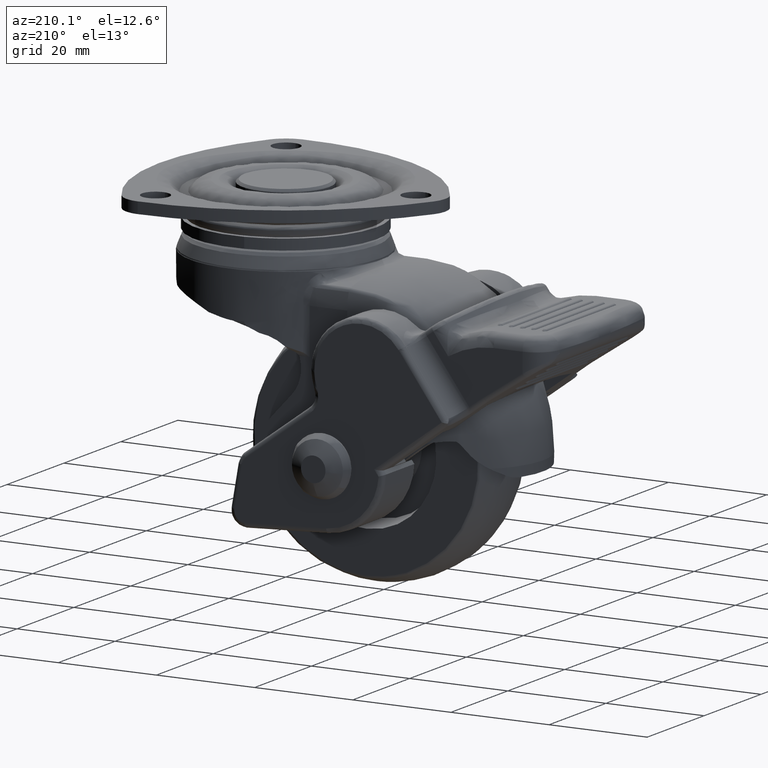
[diagram: clean part render]
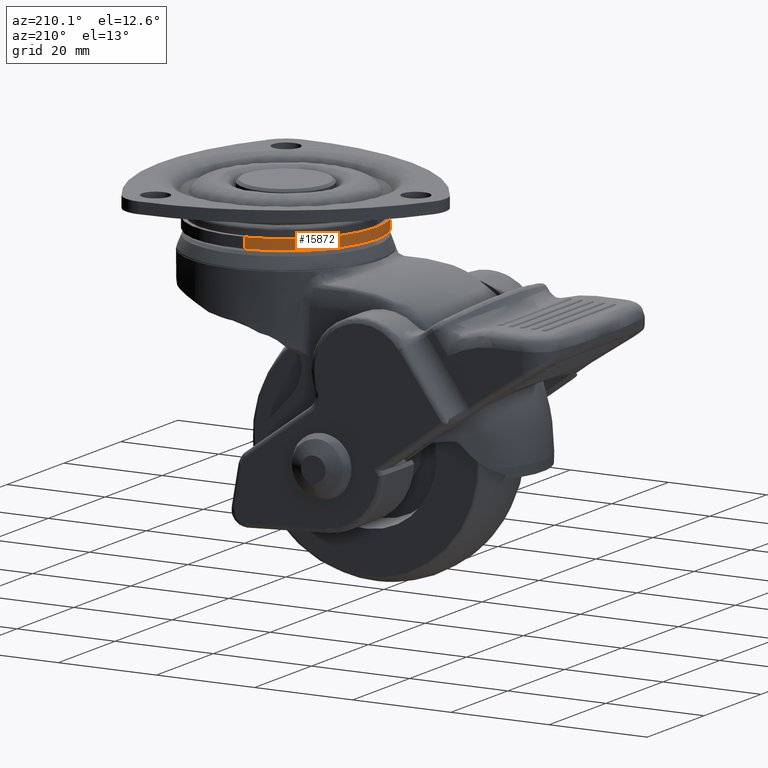
[diagram: same view with one face highlighted and labeled with its STEP entity id]
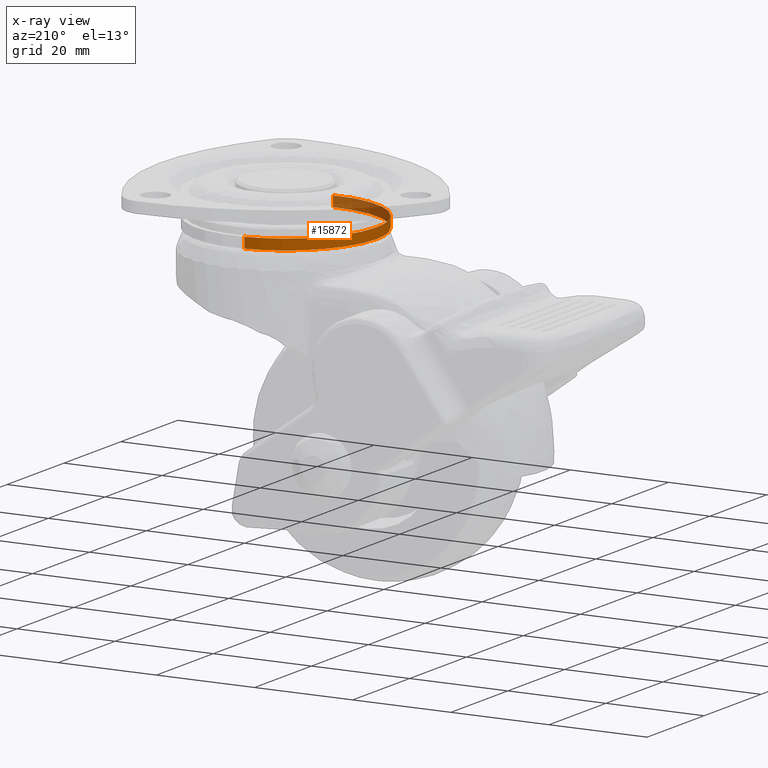
[diagram: x-ray of the same camera — body ghosted, the highlighted face saturated]
A machine part, auxiliary view. The second image highlights one B-rep face of the part: STEP entity #15872.
The next image is the same camera in x-ray: the body ghosted, the highlighted face saturated — about 27% of this face is hidden behind the body in this view.
In plain terms, the highlighted face is a freeform B-spline surface patch.
Its self-contained STEP definition (entity closure, byte-faithful):
#15709=CARTESIAN_POINT('',(-2.183615989618576,18.370678300203739,-6.700500000001060));
#15710=VERTEX_POINT('',#15709);
#15728=CARTESIAN_POINT('',(1.129368304140175,-18.465495585895319,-6.700500000000853));
#15729=VERTEX_POINT('',#15728);
#15743=CARTESIAN_POINT('',(1.129368661588180,-18.465495564034011,-8.859083777364550));
#15744=VERTEX_POINT('',#15743);
#15745=CARTESIAN_POINT('',(1.129368304140175,-18.465495585895319,-6.700500000000853));
#15746=CARTESIAN_POINT('',(1.129368661588180,-18.465495564034011,-8.859083777364550));
#15747=QUASI_UNIFORM_CURVE('',1,(#15745,#15746),.UNSPECIFIED.,.F.,.U.);
#15748=EDGE_CURVE('',#15729,#15744,#15747,.T.);
#15765=CARTESIAN_POINT('',(-2.183616198478775,18.370678275377941,-8.859083777364550));
#15766=VERTEX_POINT('',#15765);
#15782=CARTESIAN_POINT('',(-2.183615989618576,18.370678300203739,-6.700500000001060));
#15783=CARTESIAN_POINT('',(-2.183616198478775,18.370678275377941,-8.859083777364550));
#15784=QUASI_UNIFORM_CURVE('',1,(#15782,#15783),.UNSPECIFIED.,.F.,.U.);
#15785=EDGE_CURVE('',#15710,#15766,#15784,.T.);
#15790=CARTESIAN_POINT('',(1.129397981394854,-18.465493770804532,-6.646535405565885));
#15791=CARTESIAN_POINT('',(-17.336095789409679,-19.594891752199391,-6.646535405565885));
#15792=CARTESIAN_POINT('',(-18.465493770804532,-1.129397981394854,-6.646535405565885));
#15793=CARTESIAN_POINT('',(-19.532044639551760,16.308554580530767,-6.646535405565886));
#15794=CARTESIAN_POINT('',(-2.183633341150032,18.370676237727821,-6.646535405565885));
#15795=CARTESIAN_POINT('',(1.129397981394854,-18.465493770804532,-8.914397486659517));
#15796=CARTESIAN_POINT('',(-17.336095789409679,-19.594891752199391,-8.914397486659517));
#15797=CARTESIAN_POINT('',(-18.465493770804532,-1.129397981394854,-8.914397486659517));
#15798=CARTESIAN_POINT('',(-19.532044639551760,16.308554580530767,-8.914397486659517));
#15799=CARTESIAN_POINT('',(-2.183633341150032,18.370676237727821,-8.914397486659519));
#15807=(BOUNDED_SURFACE()B_SPLINE_SURFACE(2,1,((#15790,#15795),(#15791,#15796),(#15792,#15797),(#15793,#15798),(#15794,#15799)),.UNSPECIFIED.,.F.,.F.,.U.)B_SPLINE_SURFACE_WITH_KNOTS((3,2,3),(2,2),(0.0,30.651803615609019,60.077535086593677),(0.0,2.267862081093633),.UNSPECIFIED.)GEOMETRIC_REPRESENTATION_ITEM()RATIONAL_B_SPLINE_SURFACE(((1.0,1.0),(0.707106781186548,0.707106781186548),(1.0,1.0),(0.718822509939086,0.718822509939086),(0.977505800795127,0.977505800795127)))REPRESENTATION_ITEM('')SURFACE());
#15808=CARTESIAN_POINT('',(-18.500000000000000,0.0,-6.700500000000000));
#15809=VERTEX_POINT('',#15808);
#15810=CARTESIAN_POINT('',(-18.500000000000000,0.0,-6.700500000000000));
#15811=CARTESIAN_POINT('',(-18.500000000000004,16.431244359036871,-6.700500000000000));
#15812=CARTESIAN_POINT('',(-2.183615989618576,18.370678300203739,-6.700500000001060));
#15820=(BOUNDED_CURVE()B_SPLINE_CURVE(2,(#15810,#15811,#15812),.UNSPECIFIED.,.F.,.U.)B_SPLINE_CURVE_WITH_KNOTS((3,3),(0.0,0.229562633143157),.UNSPECIFIED.)CURVE()GEOMETRIC_REPRESENTATION_ITEM()RATIONAL_B_SPLINE_CURVE((1.0,0.731050645837636,0.956027067064583))REPRESENTATION_ITEM(''));
#15821=EDGE_CURVE('',#15809,#15710,#15820,.T.);
#15822=ORIENTED_EDGE('',*,*,#15821,.T.);
#15823=ORIENTED_EDGE('',*,*,#15785,.T.);
#15824=CARTESIAN_POINT('',(-18.500000000000000,0.0,-8.859083777364550));
#15825=VERTEX_POINT('',#15824);
#15826=CARTESIAN_POINT('',(-18.500000000000000,0.0,-8.859083777364550));
#15827=CARTESIAN_POINT('',(-18.499999999999993,16.431244170911466,-8.859083777364550));
#15828=CARTESIAN_POINT('',(-2.183616198478775,18.370678275377944,-8.859083777364550));
#15836=(BOUNDED_CURVE()B_SPLINE_CURVE(2,(#15826,#15827,#15828),.UNSPECIFIED.,.F.,.U.)B_SPLINE_CURVE_WITH_KNOTS((3,3),(0.0,0.229562631221723),.UNSPECIFIED.)CURVE()GEOMETRIC_REPRESENTATION_ITEM()RATIONAL_B_SPLINE_CURVE((1.0,0.731050648088736,0.956027063298486))REPRESENTATION_ITEM(''));
#15837=EDGE_CURVE('',#15825,#15766,#15836,.T.);
#15838=ORIENTED_EDGE('',*,*,#15837,.F.);
#15839=CARTESIAN_POINT('',(1.129368661588181,-18.465495564034004,-8.859083777364550));
#15840=CARTESIAN_POINT('',(0.565211420017396,-18.500000000000000,-8.859083777364550));
#15841=CARTESIAN_POINT('',(0.0,-18.500000000000000,-8.859083777364550));
#15842=CARTESIAN_POINT('',(-18.500000000000000,-18.500000000000000,-8.859083777364550));
#15843=CARTESIAN_POINT('',(-18.500000000000000,0.0,-8.859083777364550));
#15851=(BOUNDED_CURVE()B_SPLINE_CURVE(2,(#15839,#15840,#15841,#15842,#15843),.UNSPECIFIED.,.F.,.U.)B_SPLINE_CURVE_WITH_KNOTS((3,2,3),(0.739333236214580,0.750000000000000,1.0),.UNSPECIFIED.)CURVE()GEOMETRIC_REPRESENTATION_ITEM()RATIONAL_B_SPLINE_CURVE((0.976072628849365,0.987503108882262,1.0,0.707106781186548,1.0))REPRESENTATION_ITEM(''));
#15852=EDGE_CURVE('',#15744,#15825,#15851,.T.);
#15853=ORIENTED_EDGE('',*,*,#15852,.F.);
#15854=ORIENTED_EDGE('',*,*,#15748,.F.);
#15855=CARTESIAN_POINT('',(1.129368304140175,-18.465495585895326,-6.700500000000853));
#15856=CARTESIAN_POINT('',(0.565211240792317,-18.500000000000000,-6.700500000000000));
#15857=CARTESIAN_POINT('',(0.0,-18.500000000000000,-6.700500000000000));
#15858=CARTESIAN_POINT('',(-18.500000000000000,-18.500000000000000,-6.700499999999999));
#15859=CARTESIAN_POINT('',(-18.500000000000000,0.0,-6.700500000000000));
#15867=(BOUNDED_CURVE()B_SPLINE_CURVE(2,(#15855,#15856,#15857,#15858,#15859),.UNSPECIFIED.,.F.,.U.)B_SPLINE_CURVE_WITH_KNOTS((3,2,3),(0.739333239554676,0.750000000000000,1.0),.UNSPECIFIED.)CURVE()GEOMETRIC_REPRESENTATION_ITEM()RATIONAL_B_SPLINE_CURVE((0.976072636007844,0.987503112795429,1.0,0.707106781186548,1.0))REPRESENTATION_ITEM(''));
#15868=EDGE_CURVE('',#15729,#15809,#15867,.T.);
#15869=ORIENTED_EDGE('',*,*,#15868,.T.);
#15870=EDGE_LOOP('',(#15822,#15823,#15838,#15853,#15854,#15869));
#15871=FACE_OUTER_BOUND('',#15870,.T.);
#15872=ADVANCED_FACE('',(#15871),#15807,.T.);